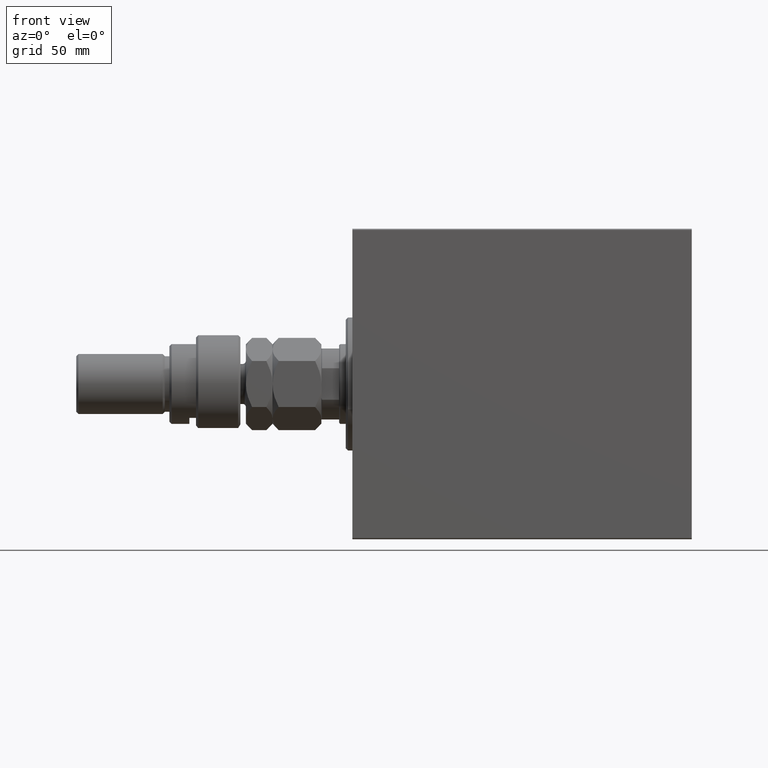
[diagram: clean part render]
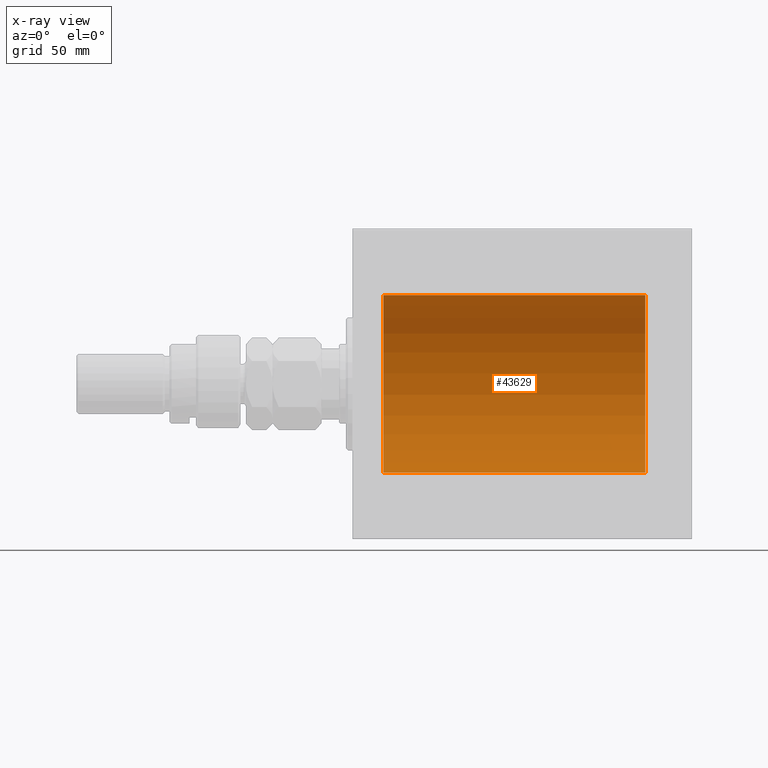
[diagram: x-ray — body ghosted, one internal face saturated and labeled with its STEP entity id]
A machine part, front view, then the same camera in x-ray: the body is ghosted and one INTERNAL B-rep face — a face not visible from any outside direction — is saturated and labeled: STEP entity #43629.
In plain terms, the highlighted cylindrical surface (partial cylindrical patch) has radius 40 mm, axis along (-1, -0, -0).
Its self-contained STEP definition (entity closure, byte-faithful):
#2510 = AXIS2_PLACEMENT_3D ( 'NONE', #15755, #16232, #5599 ) ;
#3217 = VERTEX_POINT ( 'NONE', #12886 ) ;
#5311 = VERTEX_POINT ( 'NONE', #29604 ) ;
#5599 = DIRECTION ( 'NONE',  ( 0.000000000000000000, 0.000000000000000000, 1.000000000000000000 ) ) ;
#5708 = ORIENTED_EDGE ( 'NONE', *, *, #27792, .F. ) ;
#5780 = CARTESIAN_POINT ( 'NONE',  ( 132.0000000000000000, 4.898587196589413026E-15, -40.00000000000000000 ) ) ;
#6237 = DIRECTION ( 'NONE',  ( -1.000000000000000000, 0.000000000000000000, 0.000000000000000000 ) ) ;
#8627 = DIRECTION ( 'NONE',  ( -1.000000000000000000, -0.000000000000000000, -0.000000000000000000 ) ) ;
#10446 = EDGE_CURVE ( 'NONE', #36079, #3217, #14605, .T. ) ;
#12886 = CARTESIAN_POINT ( 'NONE',  ( 13.99999999999999822, 4.898587196589413026E-15, -40.00000000000000000 ) ) ;
#13092 = DIRECTION ( 'NONE',  ( -1.000000000000000000, 0.000000000000000000, 0.000000000000000000 ) ) ;
#14605 = CIRCLE ( 'NONE', #31961, 40.00000000000000000 ) ;
#15755 = CARTESIAN_POINT ( 'NONE',  ( 132.0000000000000000, 0.000000000000000000, 0.000000000000000000 ) ) ;
#15909 = CARTESIAN_POINT ( 'NONE',  ( 13.99999999999999822, 0.000000000000000000, 40.00000000000000000 ) ) ;
#16232 = DIRECTION ( 'NONE',  ( -1.000000000000000000, -0.000000000000000000, -0.000000000000000000 ) ) ;
#17632 = ORIENTED_EDGE ( 'NONE', *, *, #45423, .F. ) ;
#22814 = VERTEX_POINT ( 'NONE', #42582 ) ;
#24058 = CIRCLE ( 'NONE', #42879, 40.00000000000000000 ) ;
#24651 = CARTESIAN_POINT ( 'NONE',  ( 13.99999999999999822, 0.000000000000000000, 0.000000000000000000 ) ) ;
#26725 = EDGE_CURVE ( 'NONE', #5311, #36079, #33700, .T. ) ;
#27792 = EDGE_CURVE ( 'NONE', #5311, #22814, #24058, .T. ) ;
#29604 = CARTESIAN_POINT ( 'NONE',  ( 132.0000000000000000, 0.000000000000000000, 40.00000000000000000 ) ) ;
#30804 = LINE ( 'NONE', #5780, #35720 ) ;
#31961 = AXIS2_PLACEMENT_3D ( 'NONE', #24651, #6237, #46127 ) ;
#33700 = LINE ( 'NONE', #43630, #42084 ) ;
#34116 = CARTESIAN_POINT ( 'NONE',  ( 132.0000000000000000, 0.000000000000000000, 0.000000000000000000 ) ) ;
#34162 = CYLINDRICAL_SURFACE ( 'NONE', #2510, 40.00000000000000000 ) ;
#35720 = VECTOR ( 'NONE', #8627, 1000.000000000000000 ) ;
#36079 = VERTEX_POINT ( 'NONE', #15909 ) ;
#36238 = ORIENTED_EDGE ( 'NONE', *, *, #10446, .T. ) ;
#37938 = FACE_OUTER_BOUND ( 'NONE', #46231, .T. ) ;
#42084 = VECTOR ( 'NONE', #43859, 1000.000000000000000 ) ;
#42582 = CARTESIAN_POINT ( 'NONE',  ( 132.0000000000000000, 4.898587196589413026E-15, -40.00000000000000000 ) ) ;
#42879 = AXIS2_PLACEMENT_3D ( 'NONE', #34116, #13092, #45218 ) ;
#43629 = ADVANCED_FACE ( 'NONE', ( #37938 ), #34162, .F. ) ;
#43630 = CARTESIAN_POINT ( 'NONE',  ( 132.0000000000000000, 0.000000000000000000, 40.00000000000000000 ) ) ;
#43859 = DIRECTION ( 'NONE',  ( -1.000000000000000000, -0.000000000000000000, -0.000000000000000000 ) ) ;
#45082 = ORIENTED_EDGE ( 'NONE', *, *, #26725, .T. ) ;
#45218 = DIRECTION ( 'NONE',  ( 0.000000000000000000, 0.000000000000000000, 1.000000000000000000 ) ) ;
#45423 = EDGE_CURVE ( 'NONE', #22814, #3217, #30804, .T. ) ;
#46127 = DIRECTION ( 'NONE',  ( 0.000000000000000000, 0.000000000000000000, 1.000000000000000000 ) ) ;
#46231 = EDGE_LOOP ( 'NONE', ( #17632, #5708, #45082, #36238 ) ) ;